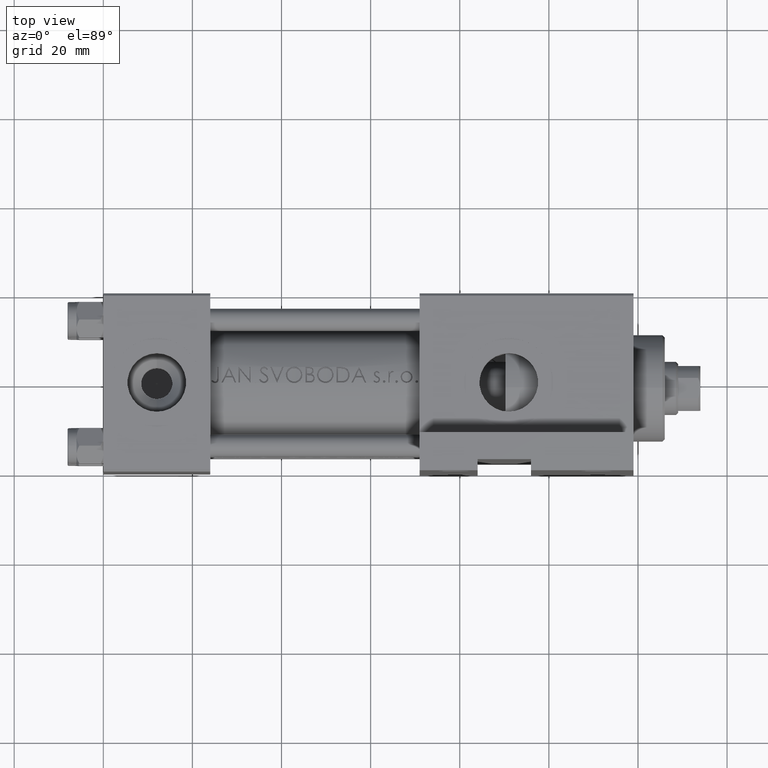
[diagram: clean part render]
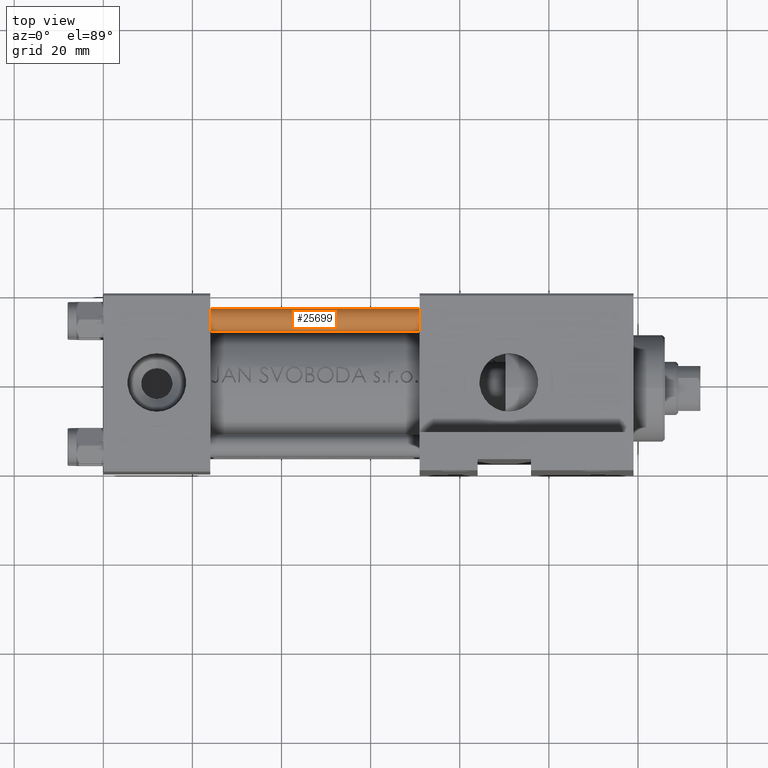
[diagram: same view with one face highlighted and labeled with its STEP entity id]
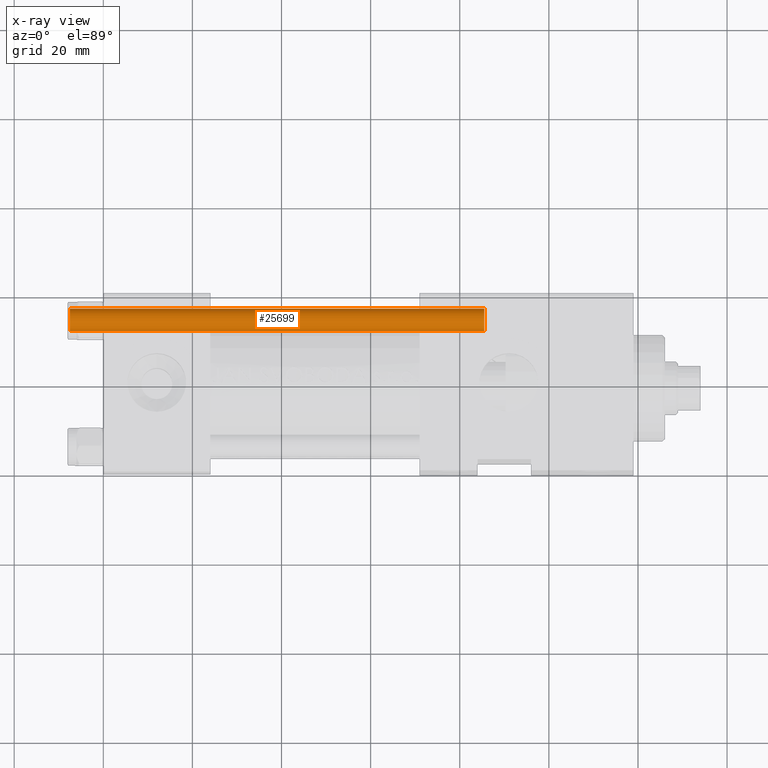
[diagram: x-ray of the same camera — body ghosted, the highlighted face saturated]
A machine part, top view. The second image highlights one B-rep face of the part: STEP entity #25699.
The next image is the same camera in x-ray: the body ghosted, the highlighted face saturated — about 0% of this face is hidden behind the body in this view.
In plain terms, the highlighted cylindrical surface (edge-blend (fillet) strip) has radius 2.5 mm, axis along (1, -0, 0).
Its self-contained STEP definition (entity closure, byte-faithful):
#787 = ORIENTED_EDGE ( 'NONE', *, *, #28183, .T. ) ;
#2731 = ORIENTED_EDGE ( 'NONE', *, *, #38510, .T. ) ;
#4735 = AXIS2_PLACEMENT_3D ( 'NONE', #17371, #43692, #31934 ) ;
#4759 = VERTEX_POINT ( 'NONE', #43426 ) ;
#5178 = EDGE_CURVE ( 'NONE', #4759, #32159, #47871, .T. ) ;
#5298 = DIRECTION ( 'NONE',  ( -0.000000000000000000, -0.000000000000000000, -1.000000000000000000 ) ) ;
#6183 = CARTESIAN_POINT ( 'NONE',  ( 2.500000000000000000, 3.061616997868383141E-16, 0.5000000000000004441 ) ) ;
#6763 = DIRECTION ( 'NONE',  ( 1.000000000000000000, 0.000000000000000000, 0.000000000000000000 ) ) ;
#11280 = CARTESIAN_POINT ( 'NONE',  ( 0.000000000000000000, 0.000000000000000000, 93.50000000000001421 ) ) ;
#11571 = VECTOR ( 'NONE', #28342, 1000.000000000000000 ) ;
#11696 = CARTESIAN_POINT ( 'NONE',  ( -2.500000000000000000, 0.000000000000000000, 0.5000000000000004441 ) ) ;
#12250 = CIRCLE ( 'NONE', #18656, 2.500000000000000000 ) ;
#12497 = EDGE_CURVE ( 'NONE', #26501, #32159, #39041, .T. ) ;
#13842 = DIRECTION ( 'NONE',  ( -1.000000000000000000, 0.000000000000000000, 0.000000000000000000 ) ) ;
#14867 = LINE ( 'NONE', #18356, #47764 ) ;
#17371 = CARTESIAN_POINT ( 'NONE',  ( 0.000000000000000000, 0.000000000000000000, 0.5000000000000004441 ) ) ;
#18356 = CARTESIAN_POINT ( 'NONE',  ( -2.500000000000000000, 0.000000000000000000, 94.00000000000000000 ) ) ;
#18656 = AXIS2_PLACEMENT_3D ( 'NONE', #11280, #26578, #6763 ) ;
#18829 = CARTESIAN_POINT ( 'NONE',  ( -2.500000000000000000, 0.000000000000000000, 93.50000000000001421 ) ) ;
#22410 = EDGE_LOOP ( 'NONE', ( #27472, #787, #2731, #34412 ) ) ;
#24383 = CARTESIAN_POINT ( 'NONE',  ( 0.000000000000000000, 0.000000000000000000, 94.00000000000000000 ) ) ;
#24630 = CYLINDRICAL_SURFACE ( 'NONE', #35407, 2.500000000000000000 ) ;
#24879 = FACE_OUTER_BOUND ( 'NONE', #22410, .T. ) ;
#25699 = ADVANCED_FACE ( 'NONE', ( #24879 ), #24630, .T. ) ;
#26501 = VERTEX_POINT ( 'NONE', #11696 ) ;
#26578 = DIRECTION ( 'NONE',  ( 0.000000000000000000, 0.000000000000000000, -1.000000000000000000 ) ) ;
#27472 = ORIENTED_EDGE ( 'NONE', *, *, #5178, .F. ) ;
#28183 = EDGE_CURVE ( 'NONE', #4759, #44936, #12250, .T. ) ;
#28342 = DIRECTION ( 'NONE',  ( -0.000000000000000000, -0.000000000000000000, -1.000000000000000000 ) ) ;
#28844 = CARTESIAN_POINT ( 'NONE',  ( 2.500000000000000000, 3.061616997868383141E-16, 94.00000000000000000 ) ) ;
#31934 = DIRECTION ( 'NONE',  ( 1.000000000000000000, 0.000000000000000000, 0.000000000000000000 ) ) ;
#32159 = VERTEX_POINT ( 'NONE', #6183 ) ;
#34412 = ORIENTED_EDGE ( 'NONE', *, *, #12497, .T. ) ;
#35407 = AXIS2_PLACEMENT_3D ( 'NONE', #24383, #5298, #13842 ) ;
#38510 = EDGE_CURVE ( 'NONE', #44936, #26501, #14867, .T. ) ;
#39041 = CIRCLE ( 'NONE', #4735, 2.500000000000000000 ) ;
#43426 = CARTESIAN_POINT ( 'NONE',  ( 2.500000000000000000, 3.061616997868383141E-16, 93.50000000000001421 ) ) ;
#43692 = DIRECTION ( 'NONE',  ( -0.000000000000000000, -0.000000000000000000, 1.000000000000000000 ) ) ;
#44936 = VERTEX_POINT ( 'NONE', #18829 ) ;
#47764 = VECTOR ( 'NONE', #49443, 1000.000000000000000 ) ;
#47871 = LINE ( 'NONE', #28844, #11571 ) ;
#49443 = DIRECTION ( 'NONE',  ( -0.000000000000000000, -0.000000000000000000, -1.000000000000000000 ) ) ;